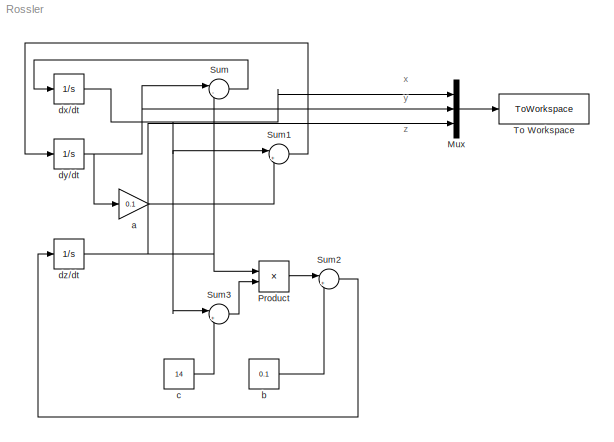
MODEL Rossler
KIND model
BLOCK [Mux] Mux
  DisplayOption = bar
  Inputs = 3
  Ports = [3, 1]
  SID = 15
BLOCK [Product] Product
  InputSameDT = off
  OutDataTypeStr = Inherit: Inherit via internal rule
  Ports = [2, 1]
  RndMeth = Floor
  SID = 10
  SaturateOnIntegerOverflow = off
BLOCK [Sum] Sum
  IconShape = round
  InputSameDT = off
  Inputs = |--
  OutDataTypeStr = Inherit: Inherit via internal rule
  Ports = [2, 1]
  SID = 5
  SaturateOnIntegerOverflow = off
BLOCK [Sum] Sum1
  IconShape = round
  InputSameDT = off
  Inputs = |++
  OutDataTypeStr = Inherit: Inherit via internal rule
  Ports = [2, 1]
  SID = 6
  SaturateOnIntegerOverflow = off
BLOCK [Sum] Sum2
  IconShape = round
  InputSameDT = off
  Inputs = |++
  OutDataTypeStr = Inherit: Inherit via internal rule
  Ports = [2, 1]
  SID = 7
  SaturateOnIntegerOverflow = off
BLOCK [Sum] Sum3
  IconShape = round
  InputSameDT = off
  Inputs = |+-
  OutDataTypeStr = Inherit: Inherit via internal rule
  Ports = [2, 1]
  SID = 12
  SaturateOnIntegerOverflow = off
BLOCK [ToWorkspace] To Workspace
  MaxDataPoints = inf
  Ports = [1]
  SID = 14
  SampleTime = -1
  Save2DSignal = 2-D array (concatenate along first dimension)
  VariableName = coordinates
BLOCK [Gain] a
  Gain = 0.1
  OutDataTypeStr = Inherit: Inherit via internal rule
  ParamDataTypeStr = Inherit: Inherit via internal rule
  SID = 1
  SaturateOnIntegerOverflow = off
BLOCK [Constant] b
  SID = 9
  Value = 0.1
BLOCK [Constant] c
  SID = 11
  Value = 14
BLOCK [Integrator] dx//dt
  Ports = [1, 1]
  SID = 4
BLOCK [Integrator] dy//dt
  Ports = [1, 1]
  SID = 2
BLOCK [Integrator] dz//dt
  Ports = [1, 1]
  SID = 3
ANNOTATION (root): x
ANNOTATION (root): y
ANNOTATION (root): z
LINE Mux:1 -> To Workspace:1
LINE Product:1 -> Sum2:1
LINE Sum1:1 -> dy//dt:1
LINE Sum2:1 -> dz//dt:1
LINE Sum3:1 -> Product:2
LINE Sum:1 -> dx//dt:1
LINE a:1 -> Sum1:2
LINE b:1 -> Sum2:2
LINE c:1 -> Sum3:2
NET dx//dt:1 -> Mux:1, Sum1:1, Sum3:1
NET dy//dt:1 -> Mux:2, Sum:1, a:1
NET dz//dt:1 -> Mux:3, Product:1, Sum:2
note: NET lines group one-source signal fan-out (src -> all destinations, sorted); 1:1 wires keep LINE
